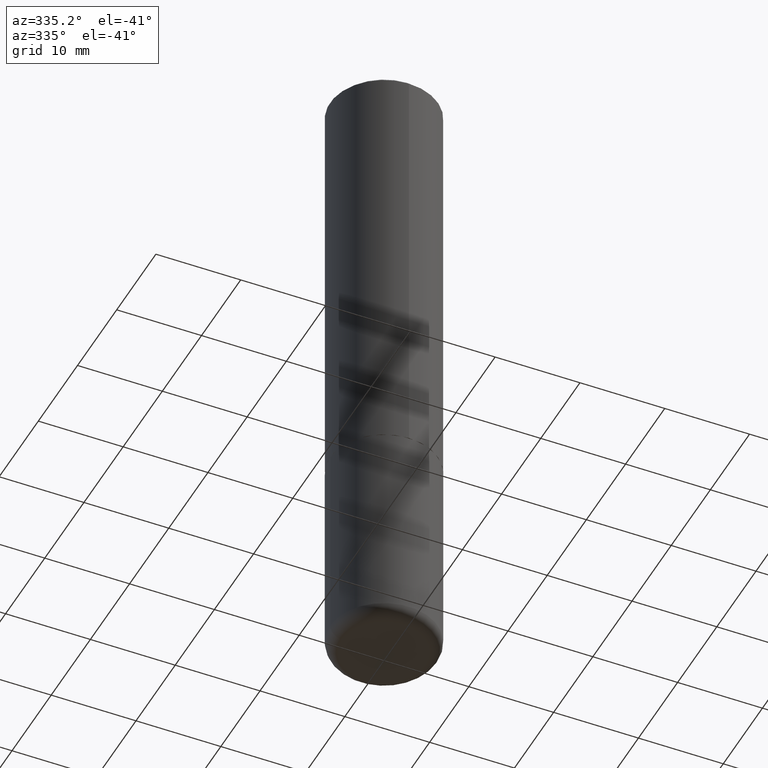
[diagram: clean part render]
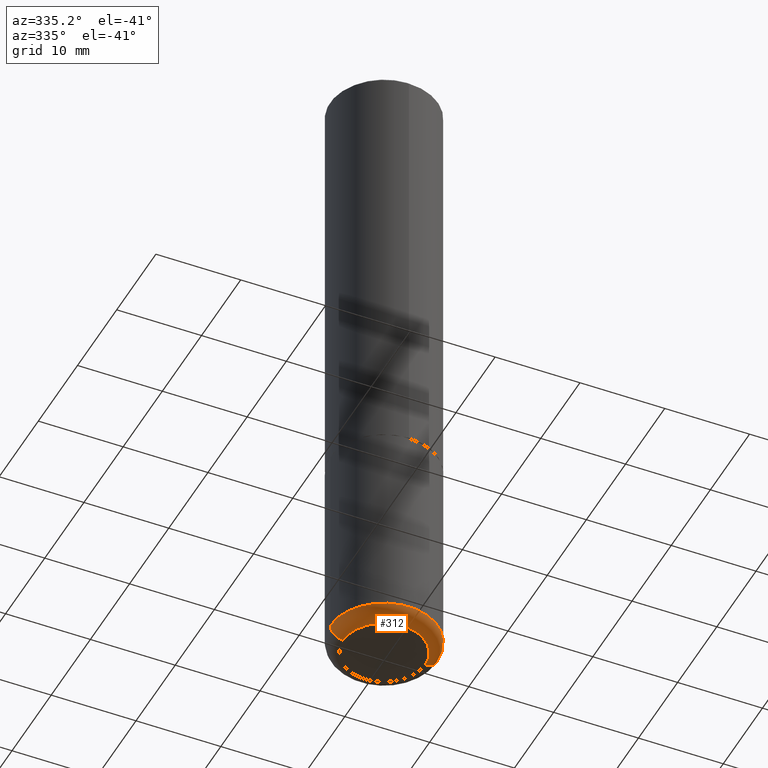
[diagram: same view with one face highlighted and labeled with its STEP entity id]
A machine part, auxiliary view. The second image highlights one B-rep face of the part: STEP entity #312.
In plain terms, the highlighted toroidal blend (fillet) surface has major radius 4.826 mm and minor (blend) radius 1.524 mm.
Its self-contained STEP definition (entity closure, byte-faithful):
#11 = AXIS2_PLACEMENT_3D ( 'NONE', #164, #330, #418 ) ;
#29 = VERTEX_POINT ( 'NONE', #129 ) ;
#38 = DIRECTION ( 'NONE',  ( 1.000000000000000000, -6.982962677686270655E-15, 0.000000000000000000 ) ) ;
#48 = FACE_OUTER_BOUND ( 'NONE', #138, .T. ) ;
#74 = DIRECTION ( 'NONE',  ( -2.445468806185136597E-29, 3.491481338843145583E-15, 1.000000000000000000 ) ) ;
#87 = DIRECTION ( 'NONE',  ( -1.000000000000000000, 7.105427357600993970E-15, 0.000000000000000000 ) ) ;
#96 = VERTEX_POINT ( 'NONE', #105 ) ;
#105 = CARTESIAN_POINT ( 'NONE',  ( 0.2500000000000000000, -1.201069580562041945E-14, -2.940000000000000835 ) ) ;
#114 = AXIS2_PLACEMENT_3D ( 'NONE', #363, #74, #272 ) ;
#123 = EDGE_CURVE ( 'NONE', #377, #96, #224, .T. ) ;
#129 = CARTESIAN_POINT ( 'NONE',  ( 0.1899999999999999745, -1.180120692528982640E-14, -3.000000000000000444 ) ) ;
#133 = EDGE_CURVE ( 'NONE', #29, #96, #291, .T. ) ;
#138 = EDGE_LOOP ( 'NONE', ( #288, #152, #333, #242 ) ) ;
#146 = CARTESIAN_POINT ( 'NONE',  ( 7.189678290184301639E-29, -1.026495513619884961E-14, -2.940000000000000391 ) ) ;
#149 = DIRECTION ( 'NONE',  ( 1.000000000000000000, -6.982962677686264344E-15, 4.883557194083112340E-29 ) ) ;
#152 = ORIENTED_EDGE ( 'NONE', *, *, #163, .T. ) ;
#160 = AXIS2_PLACEMENT_3D ( 'NONE', #146, #402, #149 ) ;
#163 = EDGE_CURVE ( 'NONE', #341, #29, #182, .T. ) ;
#164 = CARTESIAN_POINT ( 'NONE',  ( 7.189678290184302760E-29, -1.026495513619885119E-14, -2.940000000000000835 ) ) ;
#175 = TOROIDAL_SURFACE ( 'NONE', #160, 0.1899999999999999745, 0.05999999999999997696 ) ;
#176 = CIRCLE ( 'NONE', #225, 0.05999999999999997696 ) ;
#182 = CIRCLE ( 'NONE', #114, 0.1899999999999999745 ) ;
#219 = CARTESIAN_POINT ( 'NONE',  ( -0.1899999999999999745, -8.914923938254659640E-15, -2.940000000000000391 ) ) ;
#224 = CIRCLE ( 'NONE', #11, 0.2500000000000000555 ) ;
#225 = AXIS2_PLACEMENT_3D ( 'NONE', #219, #280, #87 ) ;
#242 = ORIENTED_EDGE ( 'NONE', *, *, #123, .F. ) ;
#261 = CARTESIAN_POINT ( 'NONE',  ( 0.1899999999999999745, -1.159171804495923808E-14, -2.940000000000000391 ) ) ;
#263 = AXIS2_PLACEMENT_3D ( 'NONE', #261, #387, #38 ) ;
#272 = DIRECTION ( 'NONE',  ( 1.000000000000000000, -6.982962677686261977E-15, 0.000000000000000000 ) ) ;
#280 = DIRECTION ( 'NONE',  ( 7.105427357601001859E-15, 1.000000000000000000, -3.491481338843145583E-15 ) ) ;
#288 = ORIENTED_EDGE ( 'NONE', *, *, #392, .F. ) ;
#291 = CIRCLE ( 'NONE', #263, 0.05999999999999997696 ) ;
#312 = ADVANCED_FACE ( 'NONE', ( #48 ), #175, .T. ) ;
#315 = CARTESIAN_POINT ( 'NONE',  ( -0.2500000000000000000, -8.488598296798600727E-15, -2.940000000000000835 ) ) ;
#330 = DIRECTION ( 'NONE',  ( -2.445468806185136597E-29, 3.491481338843145583E-15, 1.000000000000000000 ) ) ;
#333 = ORIENTED_EDGE ( 'NONE', *, *, #133, .T. ) ;
#341 = VERTEX_POINT ( 'NONE', #378 ) ;
#363 = CARTESIAN_POINT ( 'NONE',  ( 7.336406418555409790E-29, -1.047444401652943635E-14, -3.000000000000000444 ) ) ;
#377 = VERTEX_POINT ( 'NONE', #315 ) ;
#378 = CARTESIAN_POINT ( 'NONE',  ( -0.1899999999999999745, -8.806505557691924342E-15, -3.000000000000000444 ) ) ;
#387 = DIRECTION ( 'NONE',  ( -6.982962677686266711E-15, -1.000000000000000000, 3.491481338843145583E-15 ) ) ;
#392 = EDGE_CURVE ( 'NONE', #341, #377, #176, .T. ) ;
#402 = DIRECTION ( 'NONE',  ( -2.445468806185136597E-29, 3.491481338843145583E-15, 1.000000000000000000 ) ) ;
#418 = DIRECTION ( 'NONE',  ( 1.000000000000000000, -6.982962677686269077E-15, 0.000000000000000000 ) ) ;